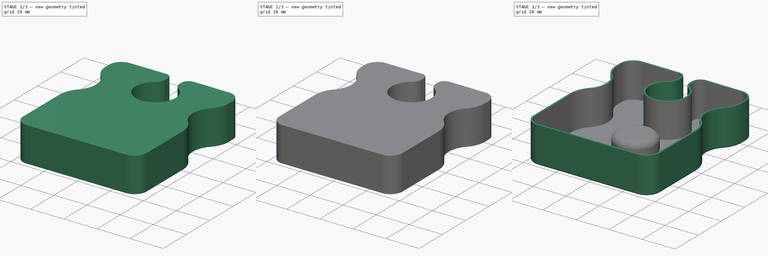
[diagram: build sequence overview — one tinted view per stage of 3, left to right]
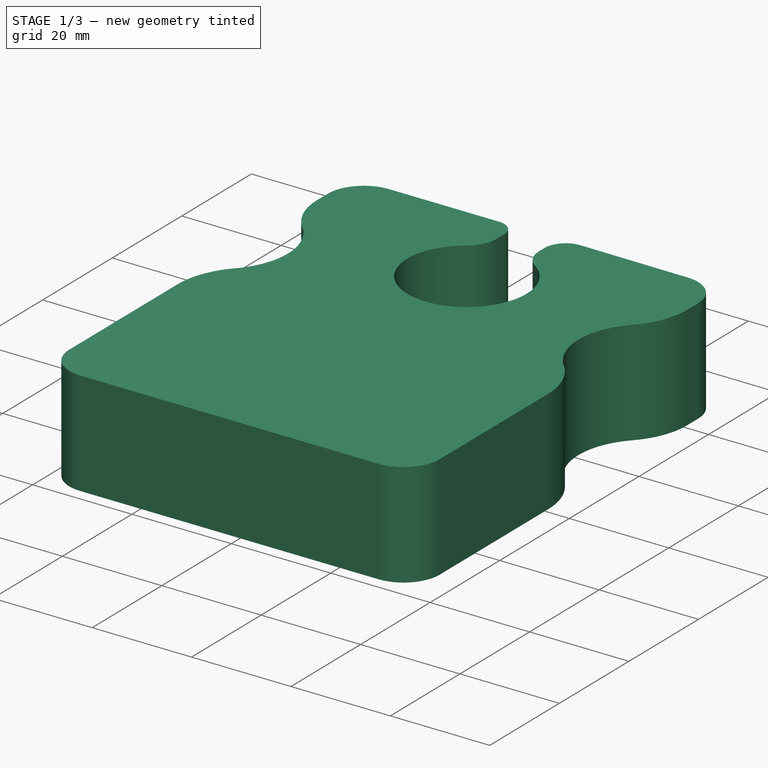
[diagram: stage 1 of 3 — iso view after this stage's code; geometry added in this stage tinted green]
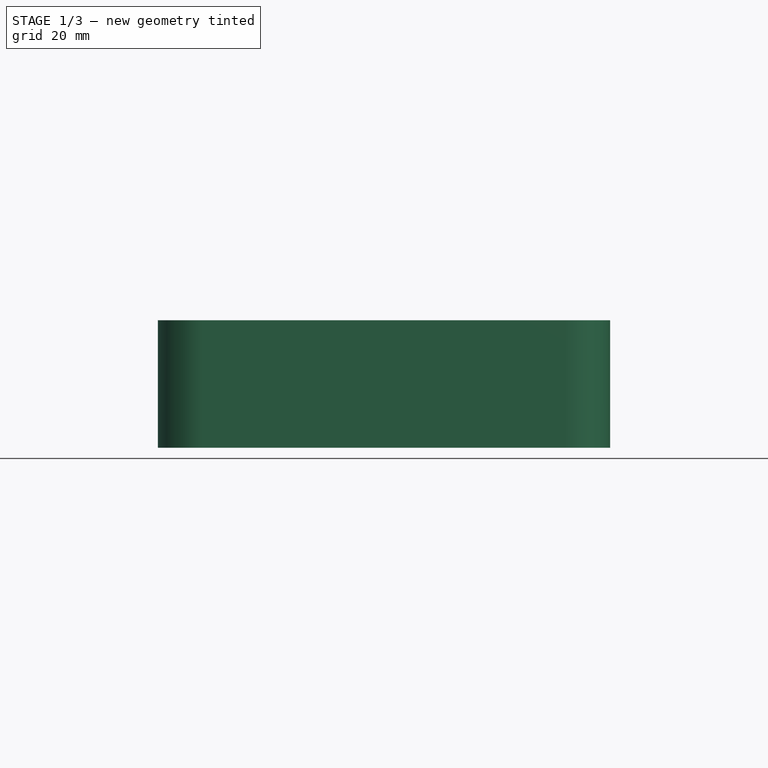
[diagram: stage 1 of 3 — front view after this stage's code; geometry added in this stage tinted green]
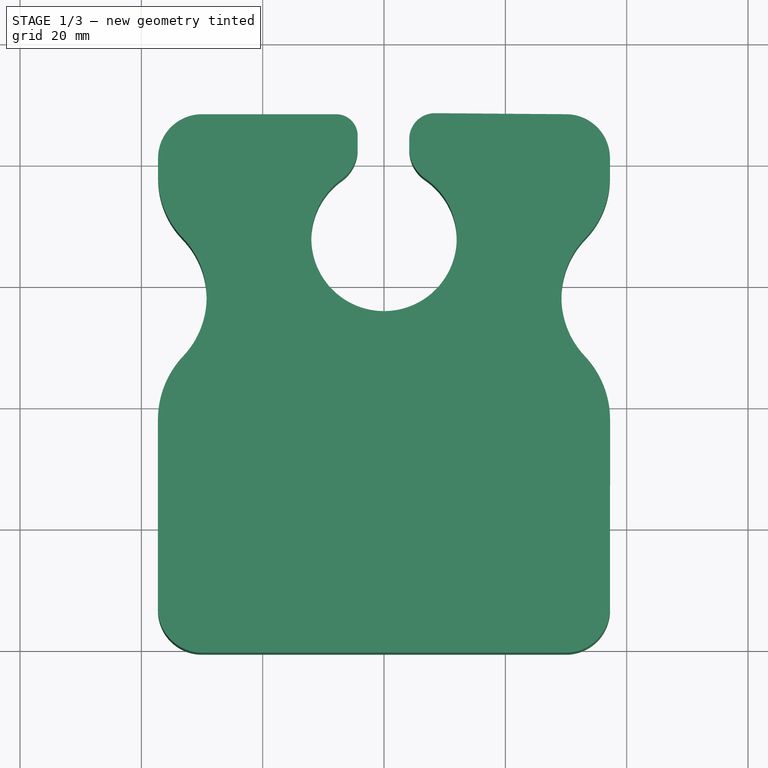
[diagram: stage 1 of 3 — top view after this stage's code; geometry added in this stage tinted green]
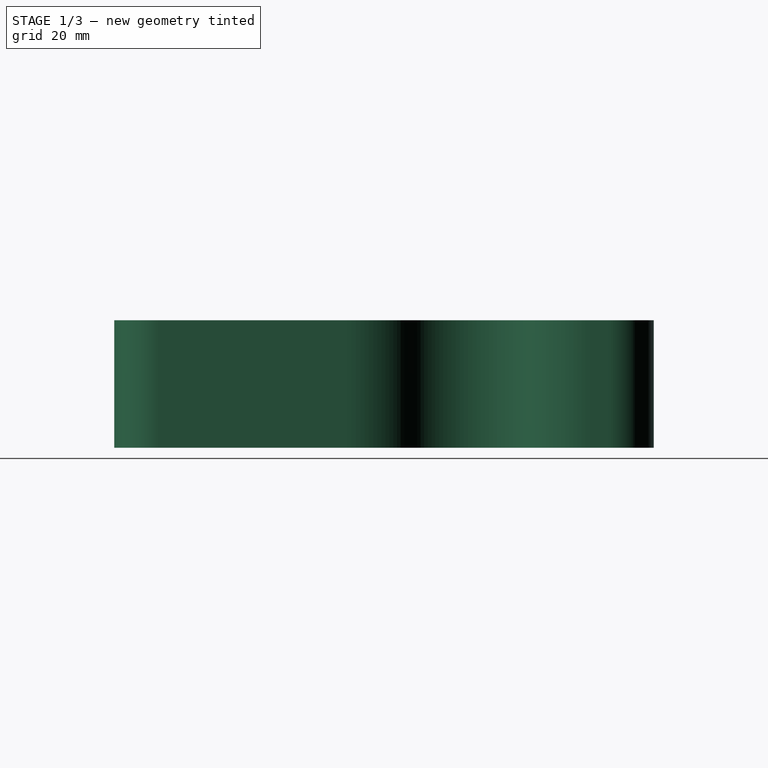
[diagram: stage 1 of 3 — right view after this stage's code; geometry added in this stage tinted green]
FCSTD DOCUMENT  (FreeCAD 0.21R33771 (Git))
Label: ex13
License: All rights reserved
LicenseURL: https://en.wikipedia.org/wiki/All_rights_reserved
objects: Sketcher::SketchObject×3, PartDesign::Pocket×2, PartDesign::Pad×1, PartDesign::Fillet×1, PartDesign::Thickness×1, PartDesign::Body×1
note: 14 computed .brp shape members not serialized (recipe doc carries the construction recipe); baked Part::Feature solids carry a one-line shape summary decoded from their .brp

FEATURE [Sketcher::SketchObject] Sketch
  FullyConstrained = false
  MapMode = 5
  Support = -> [XY_Plane]
  sketch-geometry (26):
    g0: LineSegment StartX=-37.2683 StartY=-33.327 StartZ=0 EndX=-37.2683 EndY=-2.19296 EndZ=0
    g1: LineSegment StartX=-29.9919 StartY=48.172 StartZ=0 EndX=-7.88355 EndY=48.172 EndZ=0
    g2: LineSegment StartX=37.2468 StartY=40.9171 StartZ=0 EndX=37.2468 EndY=37.8083 EndZ=0
    g3: LineSegment StartX=29.9983 StartY=-40.5819 StartZ=0 EndX=-30.0134 EndY=-40.5819 EndZ=0
    g4: GeomPoint X=0 Y=0 Z=0
    g5: ArcOfCircle CenterX=0 CenterY=27.6975 CenterZ=0 NormalX=0 NormalY=0 NormalZ=1 AngleXU=0 Radius=11.9827 StartAngle=2.19057 EndAngle=7.25441
    g6: LineSegment StartX=-4.34199 StartY=42.5361 StartZ=0 EndX=-4.34199 EndY=44.6305 EndZ=0
    g7: LineSegment StartX=4.16074 StartY=44.1112 StartZ=0 EndX=4.16074 EndY=42.5184 EndZ=0
    g8: GeomPoint X=0 Y=27.6975 Z=0
    g9: LineSegment StartX=8.42265 StartY=48.3401 StartZ=0 EndX=30.0483 EndY=48.1718 EndZ=0
    g10: ArcOfCircle CenterX=8.38975 CenterY=44.1112 CenterZ=0 NormalX=0 NormalY=0 NormalZ=1 AngleXU=0 Radius=4.22901 StartAngle=1.56302 EndAngle=3.14159
    g11: ArcOfCircle CenterX=-7.88355 CenterY=44.6305 CenterZ=0 NormalX=0 NormalY=0 NormalZ=1 AngleXU=0 Radius=3.54155 StartAngle=0 EndAngle=1.5708
    g12: ArcOfCircle CenterX=-10.5882 CenterY=42.5361 CenterZ=0 NormalX=0 NormalY=0 NormalZ=1 AngleXU=0 Radius=6.24625 StartAngle=5.33216 EndAngle=6.28319
    g13: ArcOfCircle CenterX=10.1302 CenterY=42.5184 CenterZ=0 NormalX=0 NormalY=0 NormalZ=1 AngleXU=0 Radius=5.96944 StartAngle=3.14159 EndAngle=4.11282
    g14: ArcOfCircle CenterX=29.9983 CenterY=-33.327 CenterZ=0 NormalX=0 NormalY=0 NormalZ=1 AngleXU=0 Radius=7.25491 StartAngle=4.71239 EndAngle=6.27567
    g15: ArcOfCircle CenterX=-30.0134 CenterY=-33.327 CenterZ=0 NormalX=0 NormalY=0 NormalZ=1 AngleXU=0 Radius=7.25491 StartAngle=3.14159 EndAngle=4.71239
    g16: ArcOfCircle CenterX=29.9919 CenterY=40.9171 CenterZ=0 NormalX=0 NormalY=0 NormalZ=1 AngleXU=0 Radius=7.25491 StartAngle=1e-16 EndAngle=1.56302
    g17: ArcOfCircle CenterX=-29.9919 CenterY=40.9171 CenterZ=0 NormalX=0 NormalY=0 NormalZ=1 AngleXU=0 Radius=7.25491 StartAngle=1.5708 EndAngle=3.14146
    g18: ArcOfCircle CenterX=-43.3843 CenterY=18 CenterZ=0 NormalX=0 NormalY=0 NormalZ=1 AngleXU=0 Radius=14.1434 StartAngle=5.52643 EndAngle=7.05137
    g19: ArcOfCircle CenterX=43.3843 CenterY=18 CenterZ=0 NormalX=0 NormalY=0 NormalZ=1 AngleXU=0 Radius=14.1434 StartAngle=2.3734 EndAngle=3.89811
    g20: LineSegment StartX=37.2635 StartY=-2.19296 StartZ=0 EndX=37.253 EndY=-33.3815 EndZ=0
    g21: LineSegment StartX=-37.2468 StartY=37.8083 StartZ=0 EndX=-37.2468 EndY=40.9181 EndZ=0
    g22: ArcOfCircle CenterX=-22.0002 CenterY=-2.19296 CenterZ=0 NormalX=0 NormalY=0 NormalZ=1 AngleXU=0 Radius=15.2681 StartAngle=2.38484 EndAngle=3.14159
    g23: ArcOfCircle CenterX=21.9954 CenterY=-2.18783 CenterZ=0 NormalX=0 NormalY=0 NormalZ=1 AngleXU=0 Radius=15.2681 StartAngle=6.28285 EndAngle=7.0397
    g24: ArcOfCircle CenterX=-22.8823 CenterY=37.8083 CenterZ=0 NormalX=0 NormalY=0 NormalZ=1 AngleXU=0 Radius=14.3645 StartAngle=3.14159 EndAngle=3.90978
    g25: ArcOfCircle CenterX=22.8823 CenterY=37.8083 CenterZ=0 NormalX=0 NormalY=0 NormalZ=1 AngleXU=0 Radius=14.3645 StartAngle=5.515 EndAngle=6.28319
  constraints (44):
    c: Horizontal(g1)
    c: Horizontal(g3)
    c: Vertical(g0)
    c: Vertical(g2)
    c: Coincident(g4,g-1)
    c: PointOnObject(g5,g-2)
    c: Vertical(g6)
    c: Vertical(g7)
    c: Coincident(g8,g5)
    c: Tangent(g7,g10) = -1.5708
    c: Tangent(g9,g10) = 1.5708
    c: Tangent(g6,g11) = -1.5708
    c: Tangent(g1,g11) = 1.5708
    c: Tangent(g5,g12) = 1.5708
    c: Tangent(g6,g12) = -1.5708
    c: Tangent(g7,g13) = -1.5708
    c: Tangent(g5,g13) = 1.5708
    c: Coincident(g20,g14) = 1.5708
    c: Tangent(g3,g14) = 1.5708
    c: Tangent(g0,g15) = 1.5708
    c: Tangent(g3,g15) = 1.5708
    c: Equal(g15,g14)
    c: Tangent(g9,g16) = 1.5708
    c: Tangent(g2,g16) = 1.5708
    c: Coincident(g21,g17) = 1.5708
    c: Tangent(g1,g17) = 1.5708
    c: Equal(g16,g17)
    c: Equal(g17,g15)
    c: Symmetric(g17,g16,g-2)
    c: Equal(g19,g18)
    c: Symmetric(g18,g19,g-2)
    c: DistanceY(g-1,g18) = 18
    c: Tangent(g18,g22) = 1.5708
    c: Tangent(g0,g22) = 1.5708
    c: Tangent(g19,g23) = 1.5708
    c: Tangent(g20,g23) = 1.5708
    c: Equal(g23,g22)
    c: Tangent(g21,g24) = 1.5708
    c: Tangent(g18,g24) = 1.5708
    c: Tangent(g2,g25) = 1.5708
    c: Tangent(g19,g25) = 1.5708
    c: Equal(g25,g24)
    c: Horizontal(g18,g19)
    c: Horizontal(g0,g20)
FEATURE [PartDesign::Pad] Pad
  Direction = (0,0,1)
  Length = 21
  Length2 = 10
  Profile = -> Sketch
  ReferenceAxis = -> Sketch [N_Axis]
  Type = 0
FEATURE [Sketcher::SketchObject] Sketch001
  FullyConstrained = false
  MapMode = 5
  Placement = pos=(0,0,0) rot=(1,0,0;3.14159rad)
  Support = -> [Pad]
  sketch-geometry (1):
    g0: Circle CenterX=0 CenterY=0 CenterZ=0 NormalX=0 NormalY=0 NormalZ=1 AngleXU=0 Radius=11.9933
  constraints (1):
    c: Coincident(g0,g-1)
FEATURE [PartDesign::Pocket] Pocket
  BaseFeature = -> Pad
  Direction = (0,0,1)
  Length = 9
  Length2 = 5
  Profile = -> Sketch001
  ReferenceAxis = -> Sketch001 [N_Axis]
  Type = 0
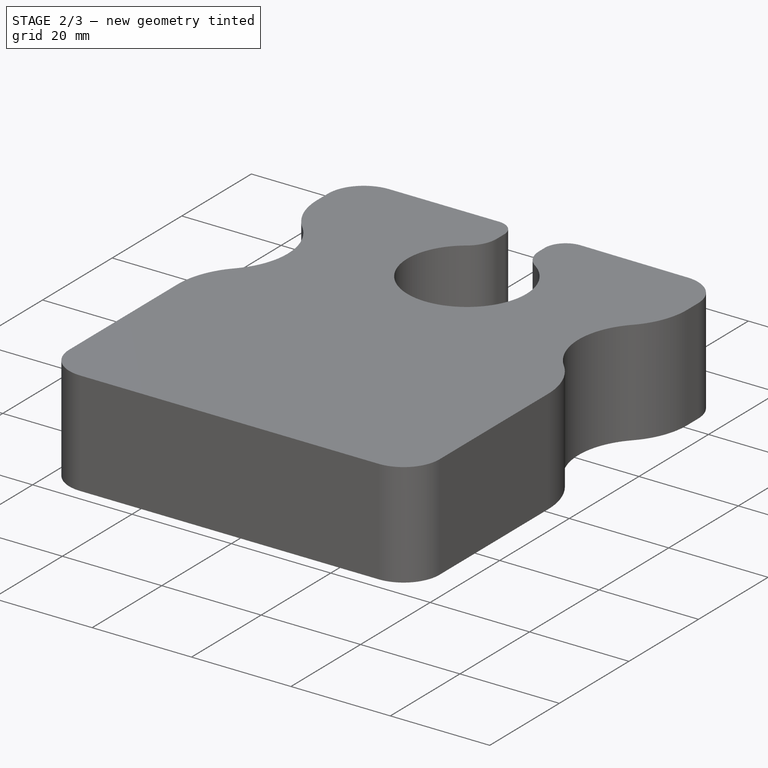
[diagram: stage 2 of 3 — iso view after this stage's code; geometry added in this stage tinted green]
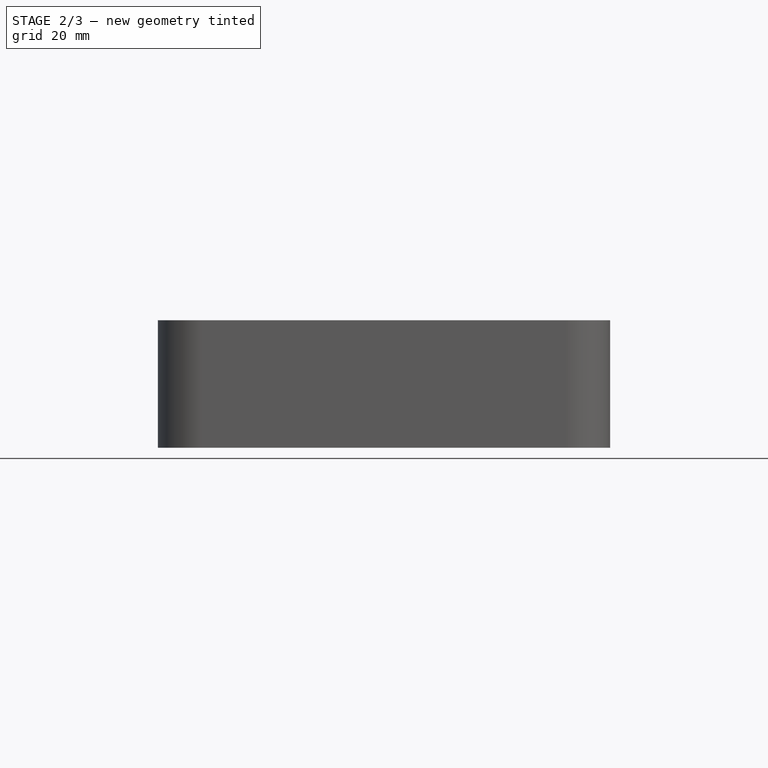
[diagram: stage 2 of 3 — front view after this stage's code; geometry added in this stage tinted green]
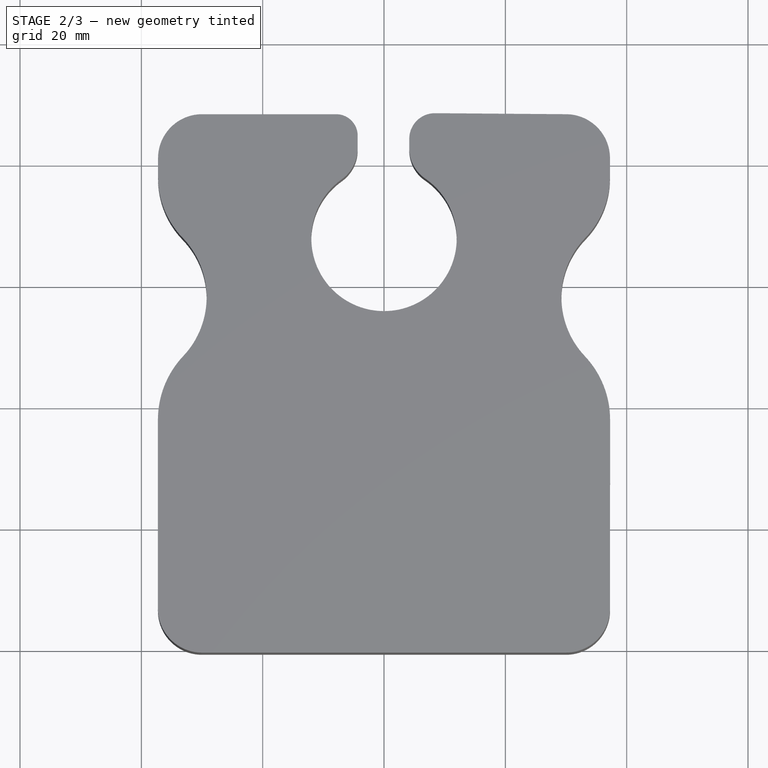
[diagram: stage 2 of 3 — top view after this stage's code; geometry added in this stage tinted green]
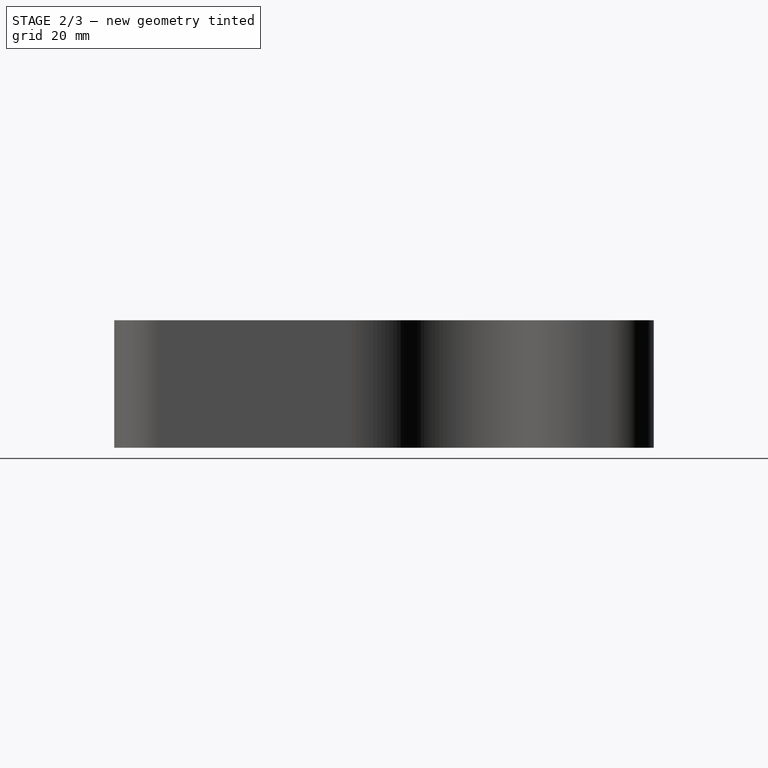
[diagram: stage 2 of 3 — right view after this stage's code; geometry added in this stage tinted green]
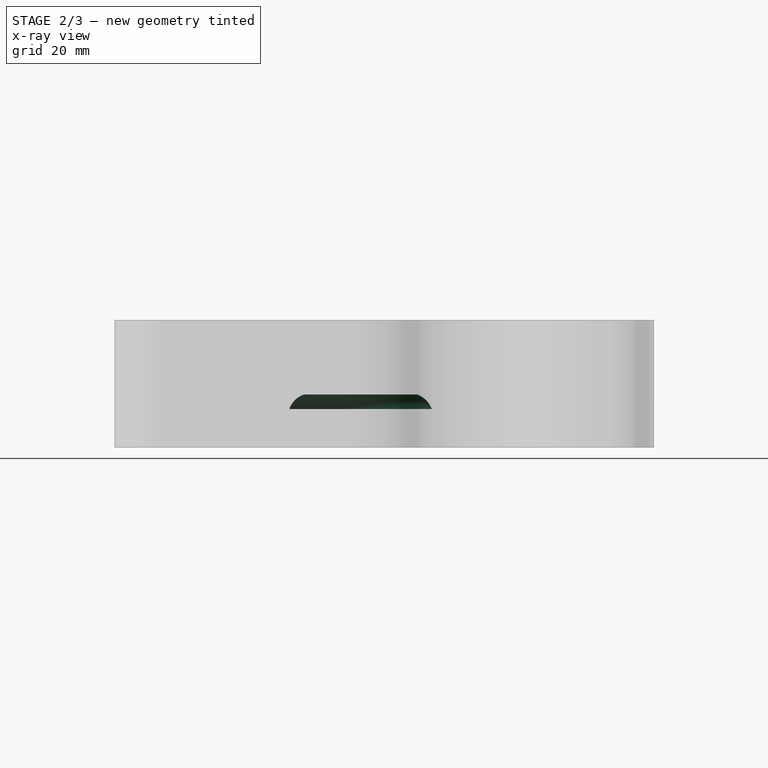
[diagram: stage 2 of 3 — x-ray composite at the right view; earlier geometry ghosted, this stage's added geometry solid]
FEATURE [PartDesign::Fillet] Fillet
  Base = -> Pocket [Edge75]
  BaseFeature = -> Pocket
  Radius = 4
  SupportTransform = false
  UseAllEdges = false
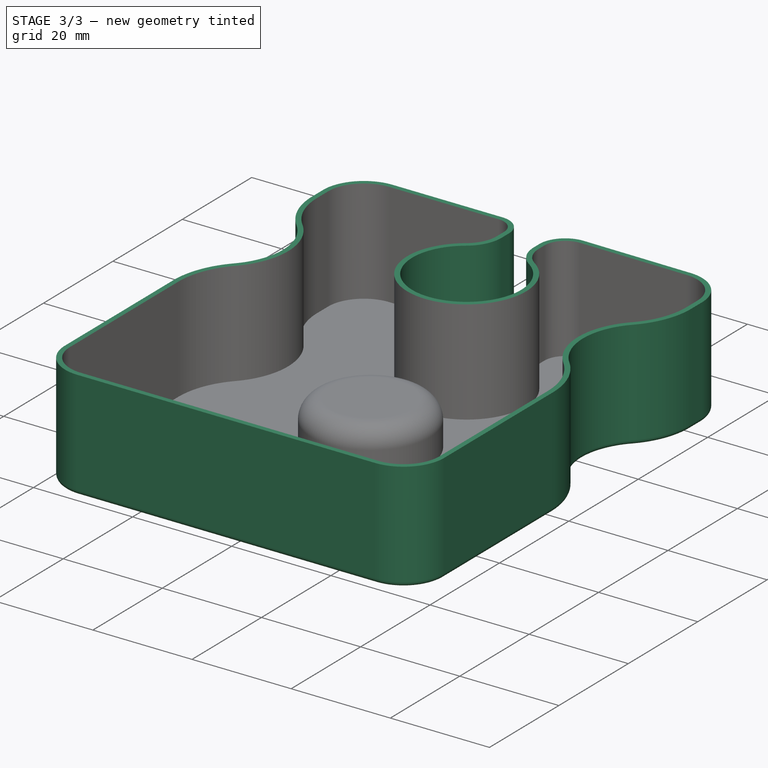
[diagram: stage 3 of 3 — iso view after this stage's code; geometry added in this stage tinted green]
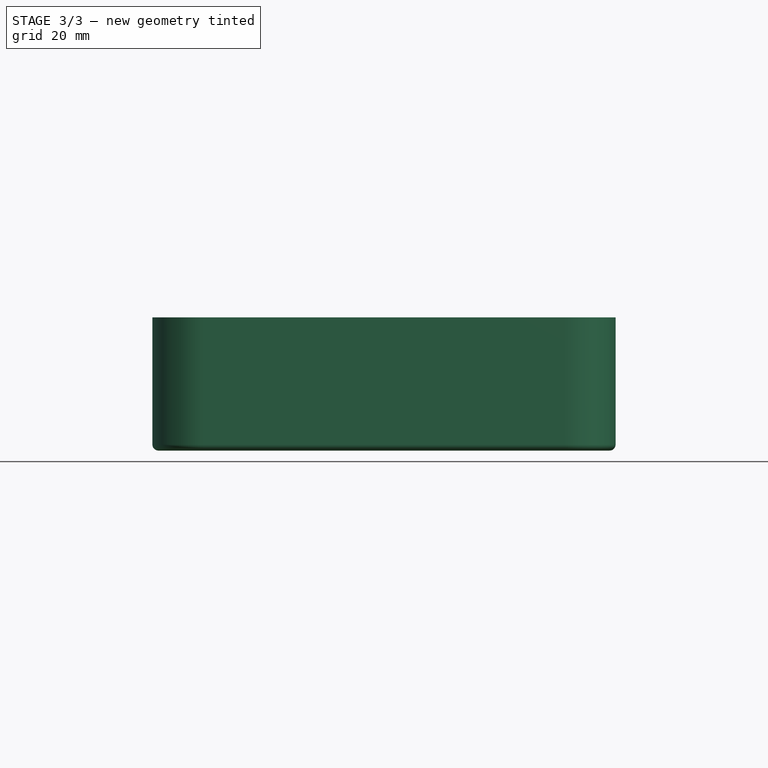
[diagram: stage 3 of 3 — front view after this stage's code; geometry added in this stage tinted green]
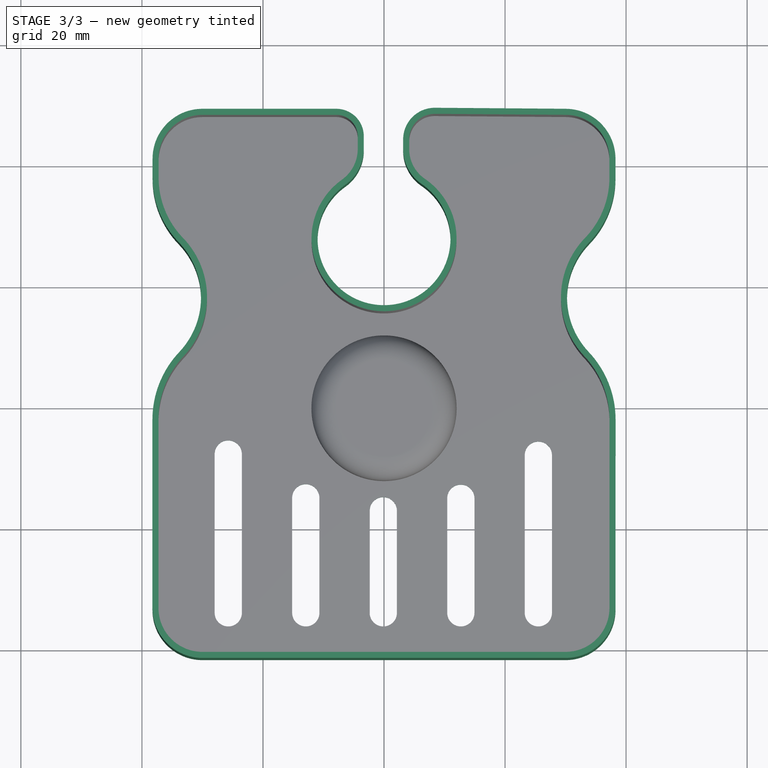
[diagram: stage 3 of 3 — top view after this stage's code; geometry added in this stage tinted green]
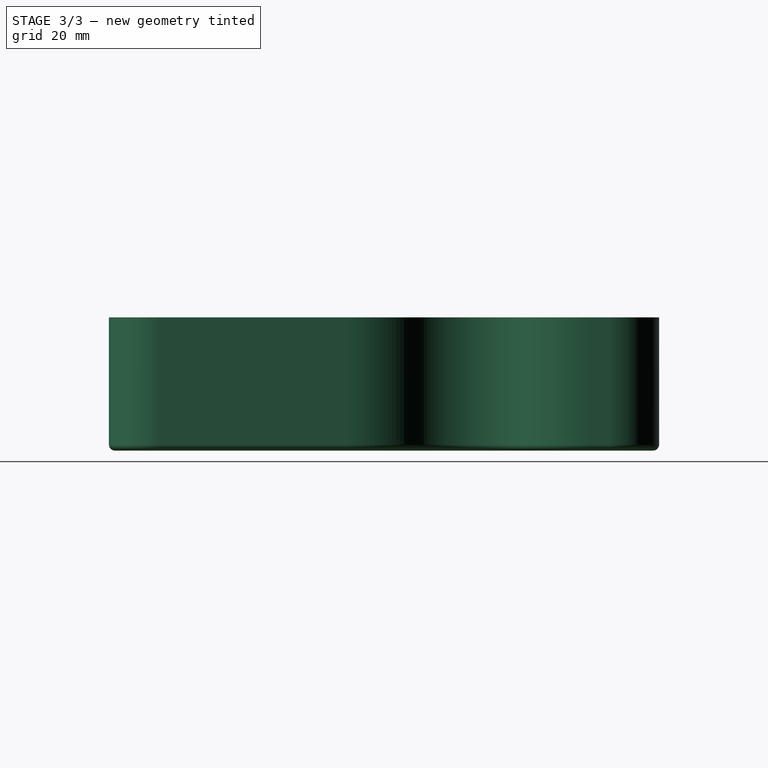
[diagram: stage 3 of 3 — right view after this stage's code; geometry added in this stage tinted green]
FEATURE [PartDesign::Thickness] Thickness
  Base = -> Fillet [Face29]
  BaseFeature = -> Fillet
  Intersection = false
  Join = 0
  Mode = 0
  SupportTransform = false
  Value = 1
FEATURE [Sketcher::SketchObject] Sketch002
  FullyConstrained = false
  MapMode = 5
  Support = -> [Thickness]
  sketch-geometry (21):
    g0: ArcOfCircle CenterX=-25.7369 CenterY=-7.53203 CenterZ=0 NormalX=0 NormalY=0 NormalZ=1 AngleXU=0 Radius=2.25 StartAngle=1e-16 EndAngle=3.14159
    g1: ArcOfCircle CenterX=-25.7369 CenterY=-33.7612 CenterZ=0 NormalX=0 NormalY=0 NormalZ=1 AngleXU=0 Radius=2.25 StartAngle=3.14159 EndAngle=6.28319
    g2: LineSegment StartX=-27.9869 StartY=-7.53203 StartZ=0 EndX=-27.9869 EndY=-33.7612 EndZ=0
    g3: LineSegment StartX=-23.4869 StartY=-33.7612 StartZ=0 EndX=-23.4869 EndY=-7.53203 EndZ=0
    g4: Circle CenterX=0 CenterY=23.1079 CenterZ=0 NormalX=0 NormalY=0 NormalZ=1 AngleXU=0 Radius=40.0149
    g5: ArcOfCircle CenterX=-12.9269 CenterY=-14.7615 CenterZ=0 NormalX=0 NormalY=0 NormalZ=1 AngleXU=0 Radius=2.25 StartAngle=0 EndAngle=3.14159
    g6: ArcOfCircle CenterX=-12.9269 CenterY=-33.7612 CenterZ=0 NormalX=0 NormalY=0 NormalZ=1 AngleXU=0 Radius=2.25 StartAngle=3.14159 EndAngle=6.28319
    g7: LineSegment StartX=-15.1769 StartY=-14.7615 StartZ=0 EndX=-15.1769 EndY=-33.7612 EndZ=0
    g8: LineSegment StartX=-10.6769 StartY=-33.7612 StartZ=0 EndX=-10.6769 EndY=-14.7615 EndZ=0
    g9: ArcOfCircle CenterX=-0.116918 CenterY=-16.9069 CenterZ=0 NormalX=0 NormalY=0 NormalZ=1 AngleXU=0 Radius=2.25 StartAngle=0 EndAngle=3.14159
    g10: ArcOfCircle CenterX=-0.116918 CenterY=-33.7612 CenterZ=0 NormalX=0 NormalY=0 NormalZ=1 AngleXU=0 Radius=2.25 StartAngle=3.14159 EndAngle=6.28319
    g11: LineSegment StartX=-2.36692 StartY=-16.9069 StartZ=0 EndX=-2.36692 EndY=-33.7612 EndZ=0
    g12: LineSegment StartX=2.13308 StartY=-33.7612 StartZ=0 EndX=2.13308 EndY=-16.9069 EndZ=0
    g13: ArcOfCircle CenterX=12.6931 CenterY=-14.8405 CenterZ=0 NormalX=0 NormalY=0 NormalZ=1 AngleXU=0 Radius=2.25 StartAngle=0 EndAngle=3.14159
    g14: ArcOfCircle CenterX=12.6931 CenterY=-33.7612 CenterZ=0 NormalX=0 NormalY=0 NormalZ=1 AngleXU=0 Radius=2.25 StartAngle=3.14159 EndAngle=6.28319
    g15: LineSegment StartX=10.4431 StartY=-14.8405 StartZ=0 EndX=10.4431 EndY=-33.7612 EndZ=0
    g16: LineSegment StartX=14.9431 StartY=-33.7612 StartZ=0 EndX=14.9431 EndY=-14.8405 EndZ=0
    g17: ArcOfCircle CenterX=25.5031 CenterY=-7.72694 CenterZ=0 NormalX=0 NormalY=0 NormalZ=1 AngleXU=0 Radius=2.25 StartAngle=0 EndAngle=3.14159
    g18: ArcOfCircle CenterX=25.5031 CenterY=-33.7612 CenterZ=0 NormalX=0 NormalY=0 NormalZ=1 AngleXU=0 Radius=2.25 StartAngle=3.14159 EndAngle=6.28319
    g19: LineSegment StartX=23.2531 StartY=-7.72694 StartZ=0 EndX=23.2531 EndY=-33.7612 EndZ=0
    g20: LineSegment StartX=27.7531 StartY=-33.7612 StartZ=0 EndX=27.7531 EndY=-7.72694 EndZ=0
  constraints (49):
    c: Tangent(g0,g2) = -1.5708
    c: Tangent(g2,g1) = -1.5708
    c: Tangent(g1,g3) = -1.5708
    c: Tangent(g3,g0) = -1.5708
    c: Equal(g0,g1)
    c: Vertical(g2)
    c: PointOnObject(g4,g-2)
    c: PointOnObject(g0,g4)
    c: Tangent(g5,g7) = -1.5708
    c: Tangent(g7,g6) = -1.5708
    c: Tangent(g6,g8) = -1.5708
    c: Tangent(g8,g5) = -1.5708
    c: Equal(g5,g6)
    c: PointOnObject(g5,g4)
    c: Tangent(g9,g11) = -1.5708
    c: Tangent(g11,g10) = -1.5708
    c: Tangent(g10,g12) = -1.5708
    c: Tangent(g12,g9) = -1.5708
    c: Equal(g9,g10)
    c: PointOnObject(g9,g4)
    c: Tangent(g13,g15) = -1.5708
    c: Tangent(g15,g14) = -1.5708
    c: Tangent(g14,g16) = -1.5708
    c: Tangent(g16,g13) = -1.5708
    c: Equal(g13,g14)
    c: PointOnObject(g13,g4)
    c: Tangent(g17,g19) = -1.5708
    c: Tangent(g19,g18) = -1.5708
    c: Tangent(g18,g20) = -1.5708
    c: Tangent(g20,g17) = -1.5708
    c: Equal(g17,g18)
    c: PointOnObject(g17,g4)
    c: DistanceX(g0,g0) = 4.5
    c: DistanceX(g5,g5) = 4.5
    c: Horizontal(g5,g5)
    c: Horizontal(g9,g9)
    c: DistanceX(g9,g9) = 4.5
    c: Horizontal(g13,g13)
    c: DistanceX(g13,g13) = 4.5
    c: DistanceX(g17,g17) = 4.5
    c: Horizontal(g17,g17)
    c: Horizontal(g1,g6)
    c: Horizontal(g6,g10)
    c: Horizontal(g10,g14)
    c: Horizontal(g14,g18)
    c: DistanceX(g1,g6) = 12.81
    c: DistanceX(g6,g10) = 12.81
    c: DistanceX(g10,g14) = 12.81
    c: DistanceX(g14,g18) = 12.81
FEATURE [PartDesign::Pocket] Pocket001
  BaseFeature = -> Thickness
  Direction = (0,0,-1)
  Length = 5
  Length2 = 5
  Profile = -> Sketch002
  ReferenceAxis = -> Sketch002 [N_Axis]
  Type = 0
FEATURE [PartDesign::Body] Body
  Group = -> [Sketch,Pad,Sketch001,Pocket,Fillet,Thickness,Sketch002,Pocket001]
  Origin = -> Origin
  Tip = -> Pocket001
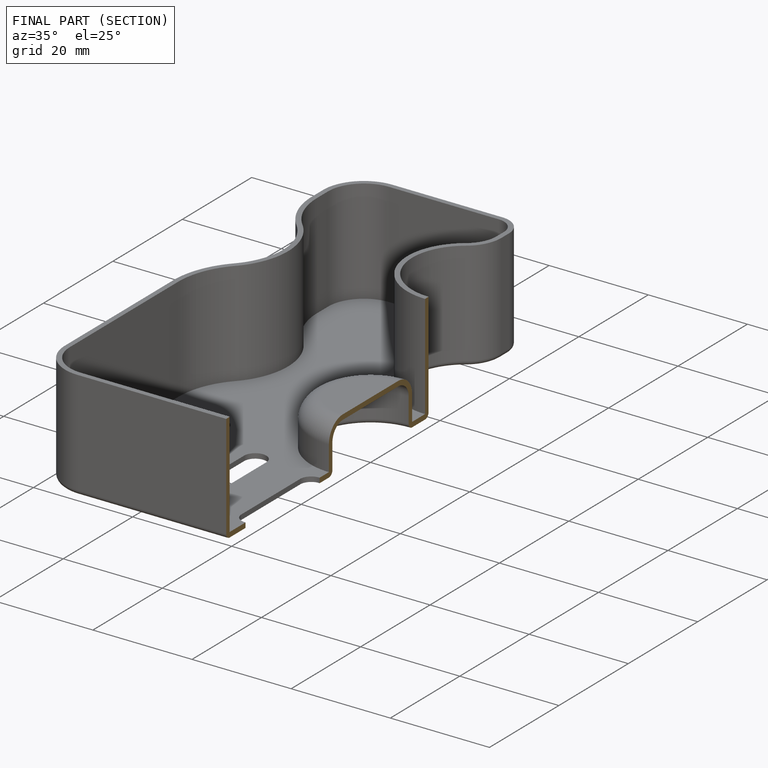
[diagram: finished part — half-section view (interior)]
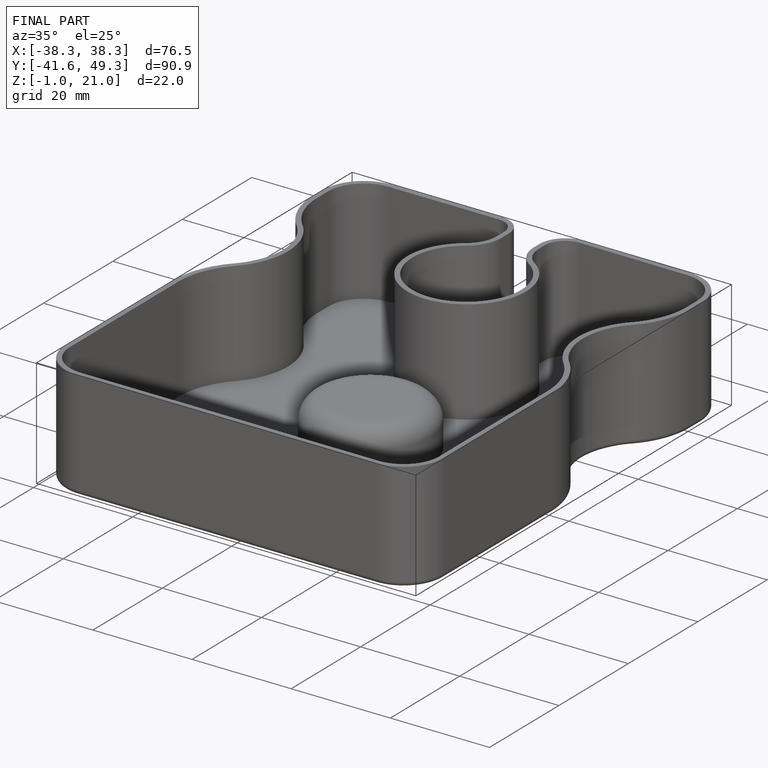
[diagram: finished part — iso view with bounding-box wireframe]
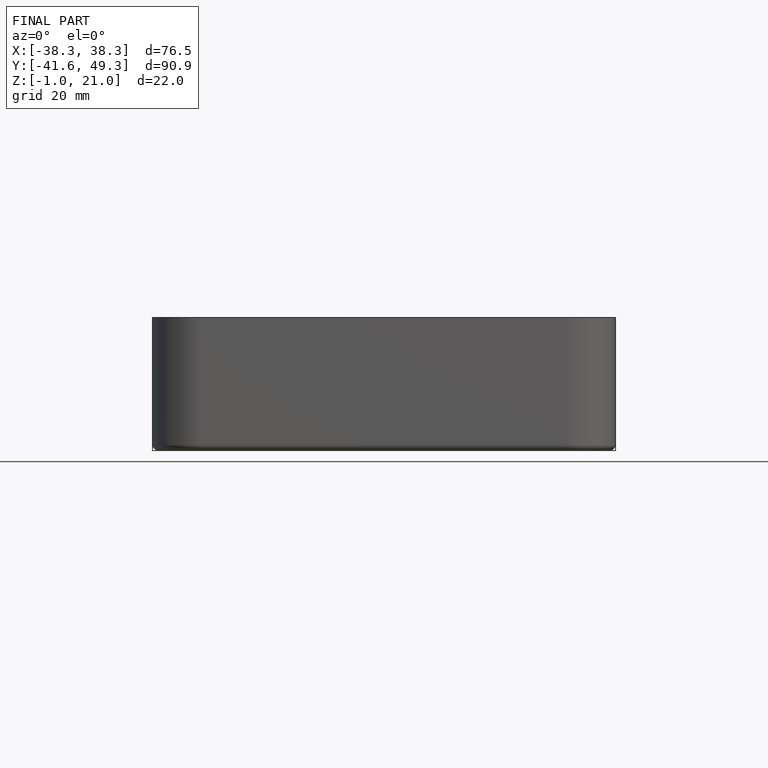
[diagram: finished part — front view with bounding-box wireframe]
